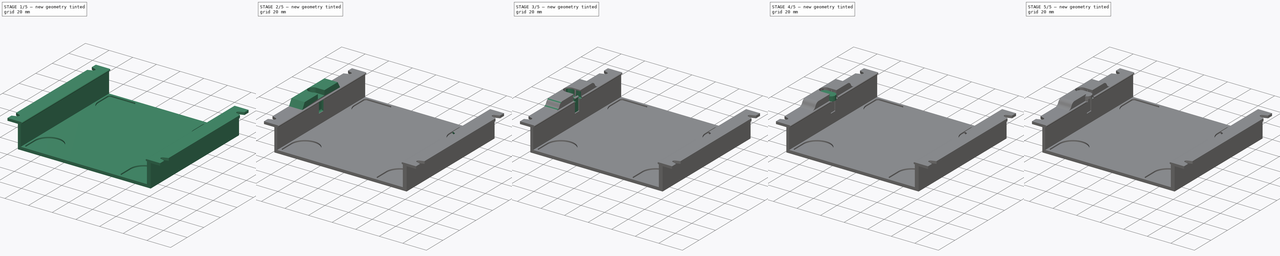
[diagram: build sequence overview — one tinted view per stage of 5, left to right]
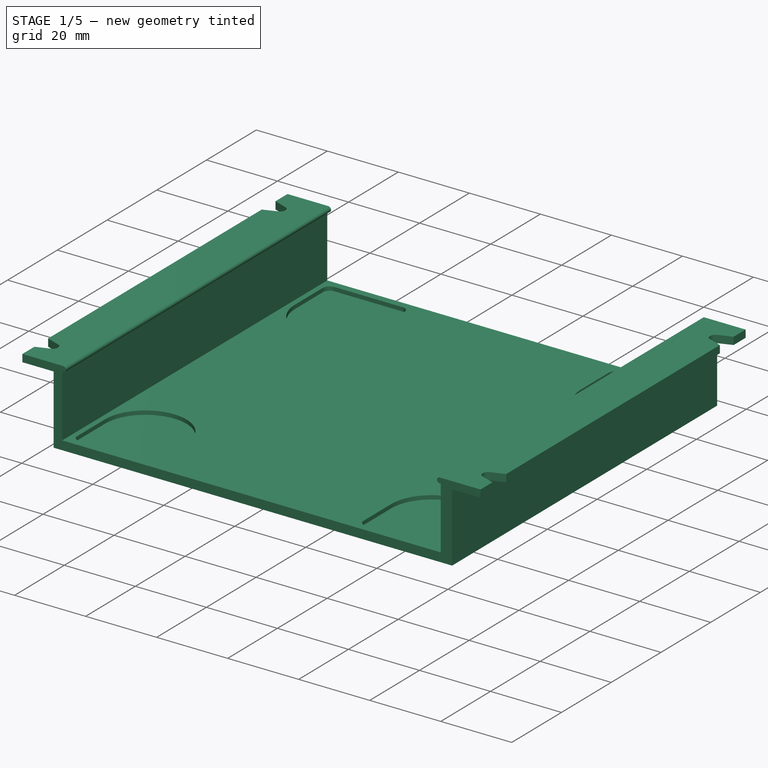
[diagram: stage 1 of 5 — iso view after this stage's code; geometry added in this stage tinted green]
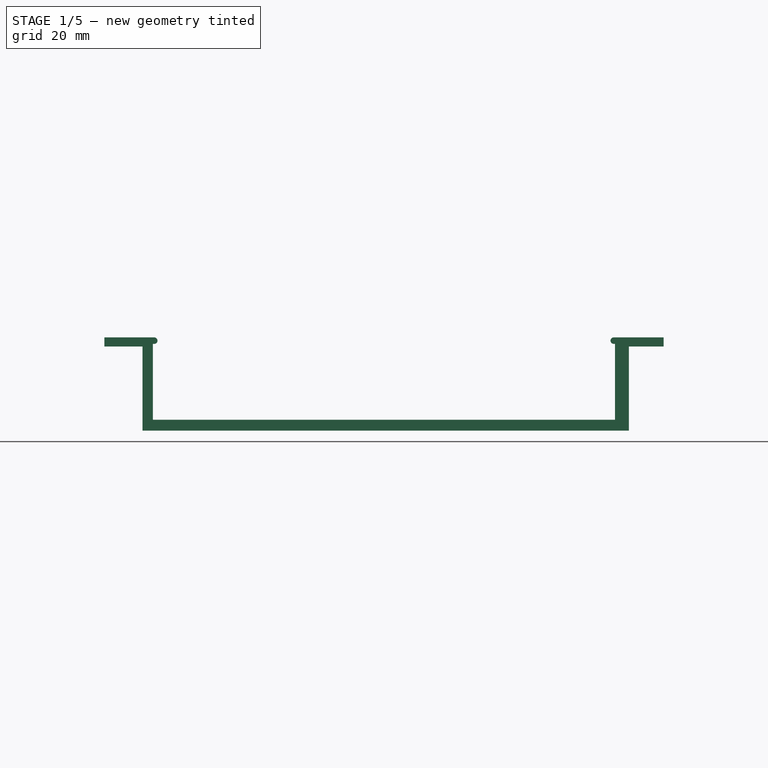
[diagram: stage 1 of 5 — front view after this stage's code; geometry added in this stage tinted green]
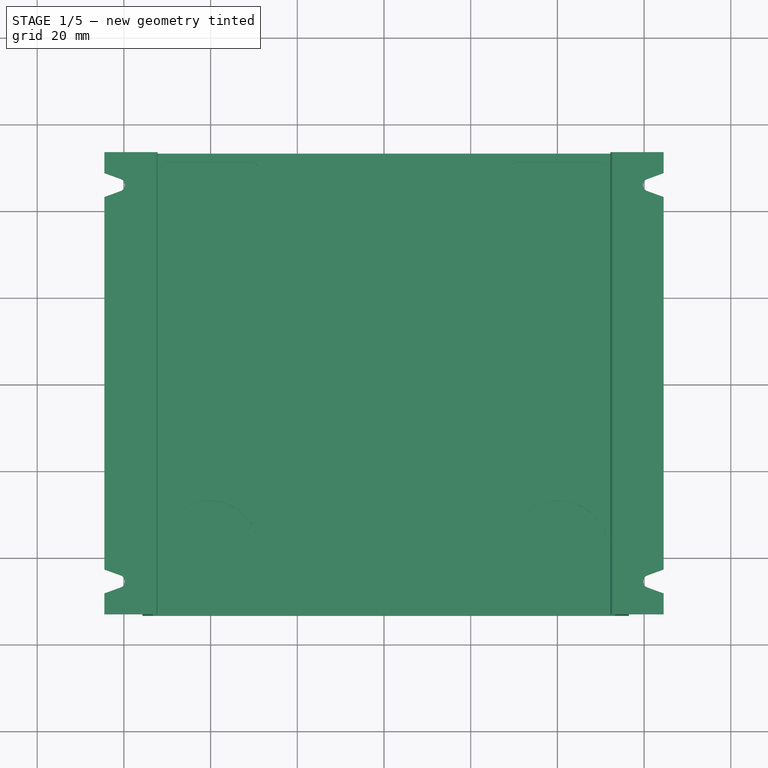
[diagram: stage 1 of 5 — top view after this stage's code; geometry added in this stage tinted green]
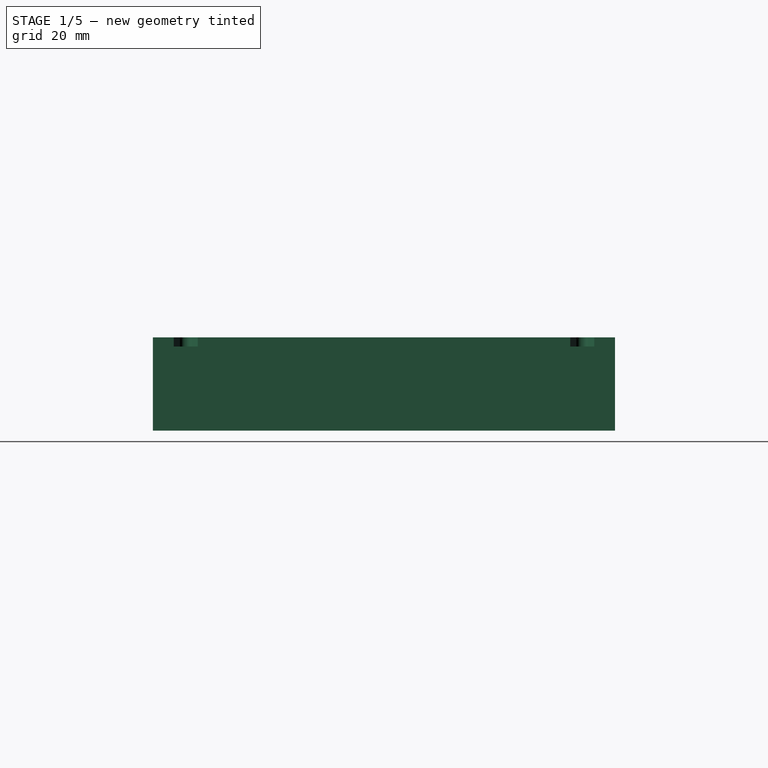
[diagram: stage 1 of 5 — right view after this stage's code; geometry added in this stage tinted green]
FCSTD DOCUMENT  (FreeCAD 0.21R33668 +26 (Git))
Label: eurorack_adapter_v2
License: All rights reserved
LicenseURL: https://en.wikipedia.org/wiki/All_rights_reserved
objects: Sketcher::SketchObject×23, PartDesign::Pocket×12, PartDesign::Pad×10, PartDesign::Plane×5, PartDesign::Mirrored×4, PartDesign::Body×3, PartDesign::Fillet×2
note: 83 computed .brp shape members not serialized (recipe doc carries the construction recipe); baked Part::Feature solids carry a one-line shape summary decoded from their .brp

FEATURE [Sketcher::SketchObject] Sketch001
  FullyConstrained = true
  MapMode = 5
  Placement = pos=(0,0,0) rot=(1,0,0;1.5708rad)
  Support = -> [XZ_Plane001]
  sketch-geometry (8):
    g0: LineSegment StartX=64.5 StartY=0 StartZ=0 EndX=55.7 EndY=0 EndZ=0
    g1: LineSegment StartX=55.7 StartY=0 StartZ=0 EndX=55.7 EndY=-19.4 EndZ=0
    g2: LineSegment StartX=64.5 StartY=0 StartZ=0 EndX=64.5 EndY=2.1 EndZ=0
    g3: LineSegment StartX=64.5 StartY=2.1 StartZ=0 EndX=53.3 EndY=2.1 EndZ=0
    g4: LineSegment StartX=53.3 StartY=2.1 StartZ=0 EndX=53.3 EndY=-16.9 EndZ=0
    g5: LineSegment StartX=53.3 StartY=-16.9 StartZ=0 EndX=0 EndY=-16.9 EndZ=0
    g6: LineSegment StartX=55.7 StartY=-19.4 StartZ=0 EndX=0 EndY=-19.4 EndZ=0
    g7: LineSegment StartX=0 StartY=-16.9 StartZ=0 EndX=0 EndY=-19.4 EndZ=0
  constraints (29):
    c: Vertical(g1)
    c: Coincident(g3,g2)
    c: Horizontal(g3)
    c: Coincident(g4,g3)
    c: Vertical(g4)
    c: DistanceY(g0,g3) = 2.1
    c: DistanceX(g3,g0) = 2.4
    c: DistanceY(g4,g3) = 19
    c: Coincident(g5,g4)
    c: Horizontal(g5)
    c: Coincident(g6,g1)
    c: Horizontal(g6)
    c: DistanceY(g1,g4) = 2.5
    c: DistanceX(g5,g5) = 53.3
    c: Coincident(g7,g5)
    c: Coincident(g7,g6)
    c: Vertical(g7)
    c: DistanceX(g5,g2) = 64.5
    c: Horizontal(g0)
    c: Coincident(g0,g1)
    c: DistanceX(g0,g0) = 8.8
    c: PointOnObject(g5,g-2)
    c: Coincident(g2,g0)
    c: Vertical(g2)
    c: PointOnObject(g0,g-1)
    c: DistanceX(g6,g1) = 55.7
    c: DistanceY(g1,g1) = 19.4
    c: DistanceY(g1,g2) = 21.5
    c: DistanceY(g5,g-1) = 16.9
FEATURE [PartDesign::Pad] Pad001  label="Main"
  Direction = (0,-1,-2e-16)
  Length = 106.6
  Length2 = 10
  Midplane = true
  Placement = pos=(0,0,0) rot=(1,0,0;1.5708rad)
  Profile = -> Sketch001
  ReferenceAxis = -> Sketch001 [N_Axis]
  Type = 0
FEATURE [Sketcher::SketchObject] Sketch002
  ExternalGeometry = -> [Pad001]
  FullyConstrained = true
  MapMode = 5
  Placement = pos=(0,0,0) rot=(1,0,0;1.5708rad)
  Support = -> [XZ_Plane001]
  sketch-geometry (4):
    g0: ArcOfCircle CenterX=53 CenterY=1.35 CenterZ=0 NormalX=0 NormalY=0 NormalZ=1 AngleXU=0 Radius=0.75 StartAngle=1.5708 EndAngle=4.71239
    g1: LineSegment StartX=53.3 StartY=2.1 StartZ=0 EndX=53 EndY=2.1 EndZ=0
    g2: LineSegment StartX=53.3 StartY=0.6 StartZ=0 EndX=53 EndY=0.6 EndZ=0
    g3: LineSegment StartX=53.3 StartY=2.1 StartZ=0 EndX=53.3 EndY=0.6 EndZ=0
  constraints (10):
    c: Coincident(g1,g-4)
    c: PointOnObject(g2,g-3)
    c: Horizontal(g2)
    c: Horizontal(g1)
    c: Diameter(g0) = 1.5
    c: Coincident(g3,g1)
    c: Coincident(g3,g2)
    c: Tangent(g0,g2) = 1.5708
    c: Tangent(g0,g1) = -1.5708
    c: DistanceX(g1,g1) = 0.3
FEATURE [PartDesign::Pad] Pad002  label="Z-holder"
  BaseFeature = -> Pad001
  Direction = (0,-1,-2e-16)
  Length = 106.6
  Length2 = 10
  Midplane = true
  Placement = pos=(0,0,0) rot=(1,0,0;1.5708rad)
  Profile = -> Sketch002
  ReferenceAxis = -> Sketch002 [N_Axis]
  Type = 0
FEATURE [Sketcher::SketchObject] Sketch003
  ExternalGeometry = -> [Pad002]
  FullyConstrained = true
  MapMode = 5
  Support = -> [XY_Plane001]
  sketch-geometry (12):
    g0: ArcOfCircle CenterX=40.3 CenterY=38.3 CenterZ=0 NormalX=0 NormalY=0 NormalZ=1 AngleXU=0 Radius=11.5 StartAngle=3.14159 EndAngle=6.28319
    g1: LineSegment StartX=28.8 StartY=38.3 StartZ=0 EndX=28.8 EndY=49.3 EndZ=0
    g2: LineSegment StartX=51.8 StartY=38.3 StartZ=0 EndX=51.8 EndY=49.3 EndZ=0
    g3: LineSegment StartX=30.8 StartY=51.3 StartZ=0 EndX=49.8 EndY=51.3 EndZ=0
    g4: ArcOfCircle CenterX=40.3 CenterY=-38.3 CenterZ=0 NormalX=0 NormalY=0 NormalZ=1 AngleXU=0 Radius=11.5 StartAngle=0 EndAngle=3.14159
    g5: LineSegment StartX=28.8 StartY=-38.3 StartZ=0 EndX=28.8 EndY=-49.3 EndZ=0
    g6: LineSegment StartX=51.8 StartY=-38.3 StartZ=0 EndX=51.8 EndY=-49.3 EndZ=0
    g7: LineSegment StartX=30.8 StartY=-51.3 StartZ=0 EndX=49.8 EndY=-51.3 EndZ=0
    g8: ArcOfCircle CenterX=30.8 CenterY=-49.3 CenterZ=0 NormalX=0 NormalY=0 NormalZ=1 AngleXU=0 Radius=2 StartAngle=3.14159 EndAngle=4.71239
    g9: ArcOfCircle CenterX=49.8 CenterY=-49.3 CenterZ=0 NormalX=0 NormalY=0 NormalZ=1 AngleXU=0 Radius=2 StartAngle=4.71239 EndAngle=6.28319
    g10: ArcOfCircle CenterX=30.8 CenterY=49.3 CenterZ=0 NormalX=0 NormalY=0 NormalZ=1 AngleXU=0 Radius=2 StartAngle=1.5708 EndAngle=3.14159
    g11: ArcOfCircle CenterX=49.8 CenterY=49.3 CenterZ=0 NormalX=0 NormalY=0 NormalZ=1 AngleXU=0 Radius=2 StartAngle=-9e-16 EndAngle=1.5708
  constraints (30):
    c: Diameter(g0) = 23
    c: Vertical(g2)
    c: Tangent(g0,g2) = -1.5708
    c: Tangent(g0,g1) = 1.5708
    c: Diameter(g4) = 23
    c: Vertical(g6)
    c: Vertical(g5)
    c: Tangent(g4,g6) = 1.5708
    c: Tangent(g4,g5) = -1.5708
    c: Horizontal(g7)
    c: Horizontal(g3)
    c: Equal(g1,g5)
    c: Vertical(g1)
    c: Vertical(g0,g4)
    c: Tangent(g5,g8) = -1.5708
    c: Tangent(g7,g8) = -1.5708
    c: Tangent(g6,g9) = 1.5708
    c: Tangent(g7,g9) = -1.5708
    c: Tangent(g3,g10) = 1.5708
    c: Tangent(g1,g10) = 1.5708
    c: Tangent(g2,g11) = -1.5708
    c: Tangent(g3,g11) = 1.5708
    c: DistanceY(g7,g4) = 13
    c: DistanceY(g-4,g7) = 2
    c: Radius(g8) = 2
    c: Equal(g8,g9)
    c: Equal(g9,g11)
    c: Equal(g11,g10)
    c: DistanceX(g6,g-4) = 1.5
    c: DistanceY(g3,g-3) = 2
FEATURE [PartDesign::Pocket] Pocket  label="Foot_pocket"
  AlongSketchNormal = false
  BaseFeature = -> Pad002
  Direction = (0,0,-1)
  Length = 18
  Length2 = 5
  Placement = pos=(0,0,0) rot=(1,0,0;1.5708rad)
  Profile = -> Sketch003
  ReferenceAxis = -> Sketch003 [N_Axis]
  Type = 0
FEATURE [Sketcher::SketchObject] Sketch004
  FullyConstrained = true
  MapMode = 5
  Support = -> [XY_Plane001]
  sketch-geometry (16):
    g0: LineSegment StartX=0 StartY=-53.3 StartZ=0 EndX=64.5 EndY=-53.3 EndZ=0
    g1: LineSegment StartX=64.5 StartY=-53.3 StartZ=0 EndX=64.5 EndY=0 EndZ=0
    g2: ArcOfCircle CenterX=61.2 CenterY=-45.8 CenterZ=0 NormalX=0 NormalY=0 NormalZ=1 AngleXU=0 Radius=1.4 StartAngle=3.14159 EndAngle=4.36332
    g3: ArcOfCircle CenterX=61.2 CenterY=-45.65 CenterZ=0 NormalX=0 NormalY=0 NormalZ=1 AngleXU=0 Radius=1.4 StartAngle=1.91986 EndAngle=3.14159
    g4: LineSegment StartX=64.5 StartY=0 StartZ=0 EndX=64.5 EndY=53.3 EndZ=0
    g5: LineSegment StartX=64.5 StartY=53.3 StartZ=0 EndX=0 EndY=53.3 EndZ=0
    g6: ArcOfCircle CenterX=61.2 CenterY=45.8 CenterZ=0 NormalX=0 NormalY=0 NormalZ=1 AngleXU=0 Radius=1.4 StartAngle=1.91986 EndAngle=3.14159
    g7: ArcOfCircle CenterX=61.2 CenterY=45.65 CenterZ=0 NormalX=0 NormalY=0 NormalZ=1 AngleXU=0 Radius=1.4 StartAngle=3.14159 EndAngle=4.36332
    g8: LineSegment StartX=59.8 StartY=-45.65 StartZ=0 EndX=59.8 EndY=-45.8 EndZ=0
    g9: LineSegment StartX=59.8 StartY=45.8 StartZ=0 EndX=59.8 EndY=45.65 EndZ=0
    g10: LineSegment StartX=60.7212 StartY=-44.3344 StartZ=0 EndX=64.5 EndY=-42.959 EndZ=0
    g11: LineSegment StartX=60.7212 StartY=-47.1156 StartZ=0 EndX=64.5 EndY=-48.491 EndZ=0
    g12: LineSegment StartX=60.7212 StartY=47.1156 StartZ=0 EndX=64.5 EndY=48.491 EndZ=0
    g13: LineSegment StartX=60.7212 StartY=44.3344 StartZ=0 EndX=64.5 EndY=42.959 EndZ=0
    g14: LineSegment StartX=64.5 StartY=-42.959 StartZ=0 EndX=64.5 EndY=-48.491 EndZ=0
    g15: LineSegment StartX=64.5 StartY=48.491 StartZ=0 EndX=64.5 EndY=42.959 EndZ=0
  constraints (45):
    c: PointOnObject(g0,g-2)
    c: Horizontal(g0)
    c: DistanceY(g0,g-1) = 53.3
    c: DistanceX(g0,g0) = 64.5
    c: Coincident(g1,g0)
    c: PointOnObject(g1,g-1)
    c: Vertical(g1)
    c: DistanceX(g2,g0) = 3.3
    c: DistanceY(g0,g2) = 7.5
    c: Vertical(g3,g2)
    c: DistanceY(g3,g1) = 45.65
    c: Diameter(g2) = 2.8
    c: Equal(g3,g2)
    c: Coincident(g4,g1)
    c: Vertical(g4)
    c: Coincident(g5,g4)
    c: PointOnObject(g5,g-2)
    c: Horizontal(g5)
    c: Equal(g4,g1)
    c: DistanceX(g6,g4) = 3.3
    c: DistanceY(g6,g4) = 7.5
    c: Vertical(g7,g6)
    c: DistanceY(g4,g7) = 45.65
    c: Equal(g7,g3)
    c: Equal(g6,g3)
    c: Tangent(g3,g8) = -1.5708
    c: Tangent(g2,g8) = -1.5708
    c: Tangent(g7,g9) = -1.5708
    c: Tangent(g6,g9) = -1.5708
    c: PointOnObject(g10,g1)
    c: PointOnObject(g11,g1)
    c: PointOnObject(g12,g4)
    c: PointOnObject(g13,g4)
    c: Coincident(g14,g10)
    c: Coincident(g14,g11)
    c: Equal(g10,g11)
    c: Angle(g11,g10) = 0.698132
    c: Equal(g12,g13)
    c: Coincident(g15,g12)
    c: Coincident(g15,g13)
    c: Angle(g13,g12) = 0.698132
    c: Tangent(g2,g11) = -1.5708
    c: Tangent(g3,g10) = 1.5708
    c: Tangent(g7,g13) = -1.5708
    c: Tangent(g6,g12) = 1.5708
FEATURE [PartDesign::Pocket] Pocket001  label="Hole"
  BaseFeature = -> Pocket
  Direction = (0,0,-1)
  Length = 5
  Length2 = 5
  Placement = pos=(0,0,0) rot=(1,0,0;1.5708rad)
  Profile = -> Sketch004
  ReferenceAxis = -> Sketch004 [N_Axis]
  Reversed = true
  Type = 0
FEATURE [PartDesign::Mirrored] Mirrored
  BaseFeature = -> Pocket001
  MirrorPlane = -> YZ_Plane001
  Originals = -> [Pad001,Pad002,Pocket,Pocket001]
  Placement = pos=(0,0,0) rot=(1,0,0;1.5708rad)
FEATURE [PartDesign::Plane] DatumPlane
  AttachmentOffset = pos=(0,0,55.8) rot=(0,0,1;0rad)
  Length = 121.201
  MapMode = 5
  Placement = pos=(55.8,-1.24e-14,1.24e-14) rot=(0.57735,0.57735,0.57735;2.0944rad)
  ResizeMode = 0
  Support = -> [YZ_Plane001]
  Width = 64.6014
FEATURE [Sketcher::SketchObject] Sketch006
  FullyConstrained = true
  MapMode = 5
  Placement = pos=(-64.5,1.4e-14,-1.4e-14) rot=(0.57735,-0.57735,-0.57735;2.0944rad)
  sketch-geometry (6):
    g0: LineSegment StartX=-53.3 StartY=2.1 StartZ=0 EndX=53.3 EndY=2.1 EndZ=0
    g1: LineSegment StartX=0 StartY=0 StartZ=0 EndX=0 EndY=2.1 EndZ=0
    g2: LineSegment StartX=-22.8868 StartY=2.1 StartZ=0 EndX=-20 EndY=7.1 EndZ=0
    g3: LineSegment StartX=-20 StartY=7.1 StartZ=0 EndX=20 EndY=7.1 EndZ=0
    g4: LineSegment StartX=20 StartY=7.1 StartZ=0 EndX=22.8868 EndY=2.1 EndZ=0
    g5: LineSegment StartX=-22.8868 StartY=2.1 StartZ=0 EndX=22.8868 EndY=2.1 EndZ=0
  constraints (17):
    c: Horizontal(g0)
    c: DistanceY(g-1,g0) = 2.1
    c: DistanceX(g0,g0) = 106.6
    c: Coincident(g1,g-1)
    c: Vertical(g1)
    c: Symmetric(g0,g0,g1)
    c: PointOnObject(g2,g0)
    c: Coincident(g3,g2)
    c: Horizontal(g3)
    c: Equal(g4,g2)
    c: Coincident(g4,g3)
    c: Symmetric(g4,g2,g1)
    c: DistanceX(g3,g3) = 40
    c: Angle(g3,g4) = 2.0944
    c: Coincident(g5,g2)
    c: Coincident(g5,g4)
    c: DistanceY(g1,g3) = 5
FEATURE [PartDesign::Plane] DatumPlane002
  AttachmentOffset = pos=(0,0,2.5) rot=(0,0,1;0rad)
  Length = 145.062
  MapMode = 5
  Placement = pos=(0,2.5,6e-16) rot=(0,0.707107,0.707107;3.14159rad)
  ResizeMode = 0
  Support = -> [XZ_Plane001]
  Width = 66.0624
FEATURE [Sketcher::SketchObject] Sketch
  FullyConstrained = true
  MapMode = 5
  Placement = pos=(0,0,0) rot=(1,0,0;1.5708rad)
  Support = -> [XZ_Plane001]
  sketch-geometry (4):
    g0: LineSegment StartX=55.7 StartY=0 StartZ=0 EndX=56.5 EndY=0 EndZ=0
    g1: LineSegment StartX=56.5 StartY=0 StartZ=0 EndX=56.5 EndY=-19.4 EndZ=0
    g2: LineSegment StartX=56.5 StartY=-19.4 StartZ=0 EndX=55.7 EndY=-19.4 EndZ=0
    g3: LineSegment StartX=55.7 StartY=-19.4 StartZ=0 EndX=55.7 EndY=0 EndZ=0
  constraints (12):
    c: Coincident(g0,g1)
    c: Coincident(g1,g2)
    c: Coincident(g2,g3)
    c: Coincident(g3,g0)
    c: Horizontal(g0)
    c: Horizontal(g2)
    c: Vertical(g1)
    c: Vertical(g3)
    c: PointOnObject(g0,g-1)
    c: DistanceX(g-1,g2) = 55.7
    c: DistanceY(g2,g-1) = 19.4
    c: DistanceX(g2,g2) = 0.8
FEATURE [PartDesign::Pad] Pad  label="Wall thickness increase"
  BaseFeature = -> Mirrored
  Direction = (0,-1,-2e-16)
  Length = 106.6
  Length2 = 10
  Midplane = true
  Placement = pos=(0,0,0) rot=(1,0,0;1.5708rad)
  Profile = -> Sketch
  ReferenceAxis = -> Sketch [N_Axis]
  Type = 0
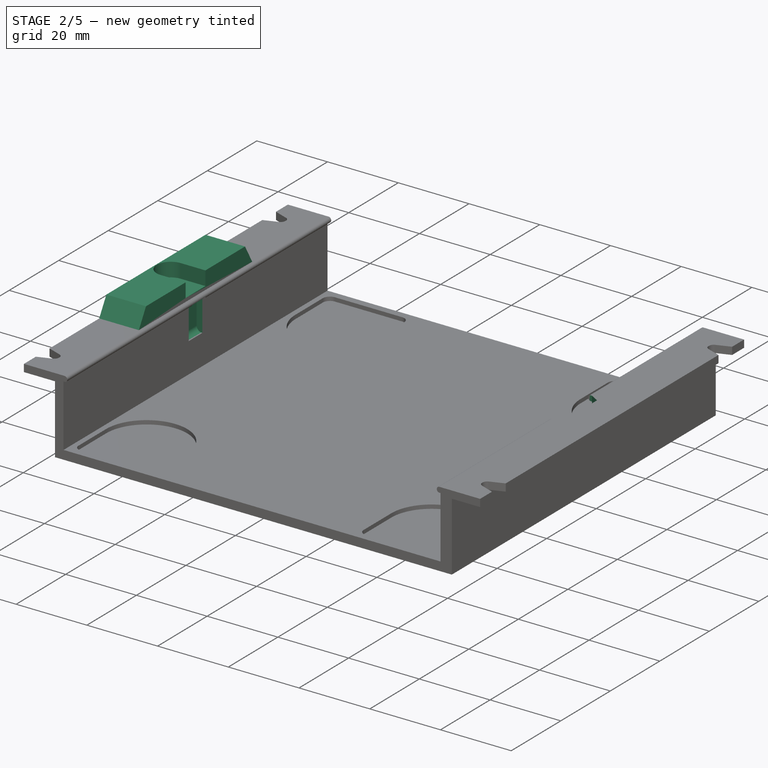
[diagram: stage 2 of 5 — iso view after this stage's code; geometry added in this stage tinted green]
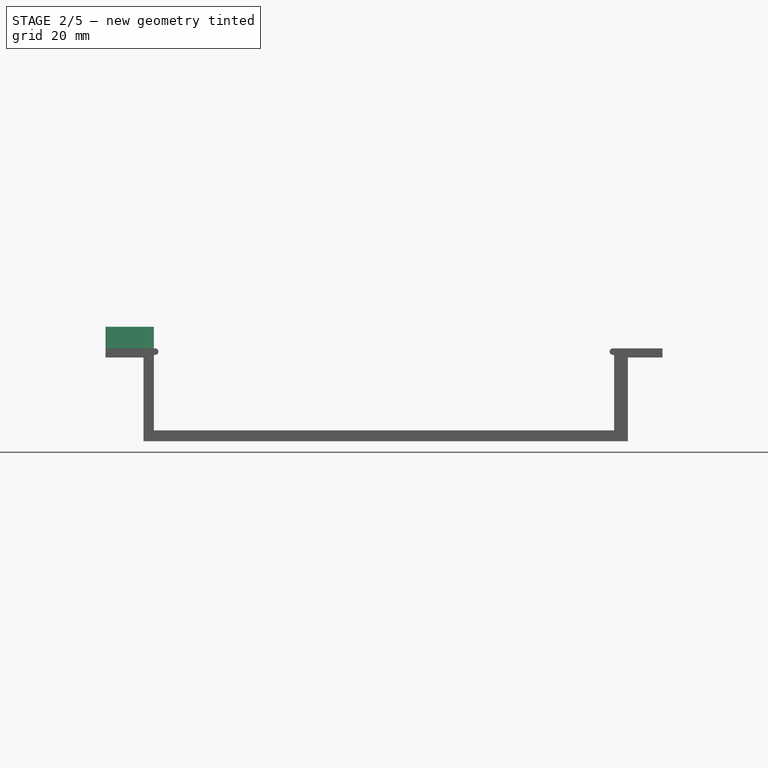
[diagram: stage 2 of 5 — front view after this stage's code; geometry added in this stage tinted green]
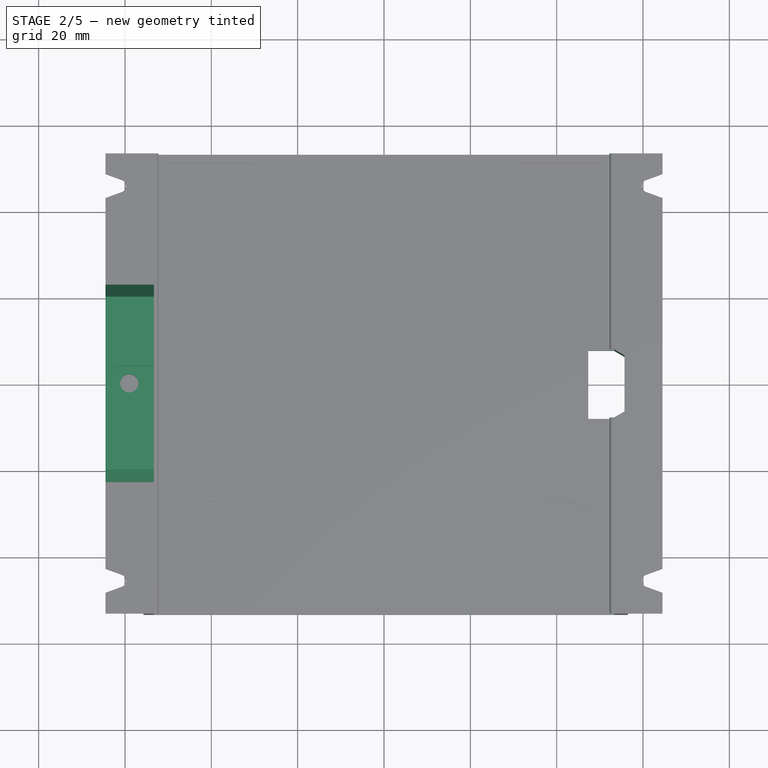
[diagram: stage 2 of 5 — top view after this stage's code; geometry added in this stage tinted green]
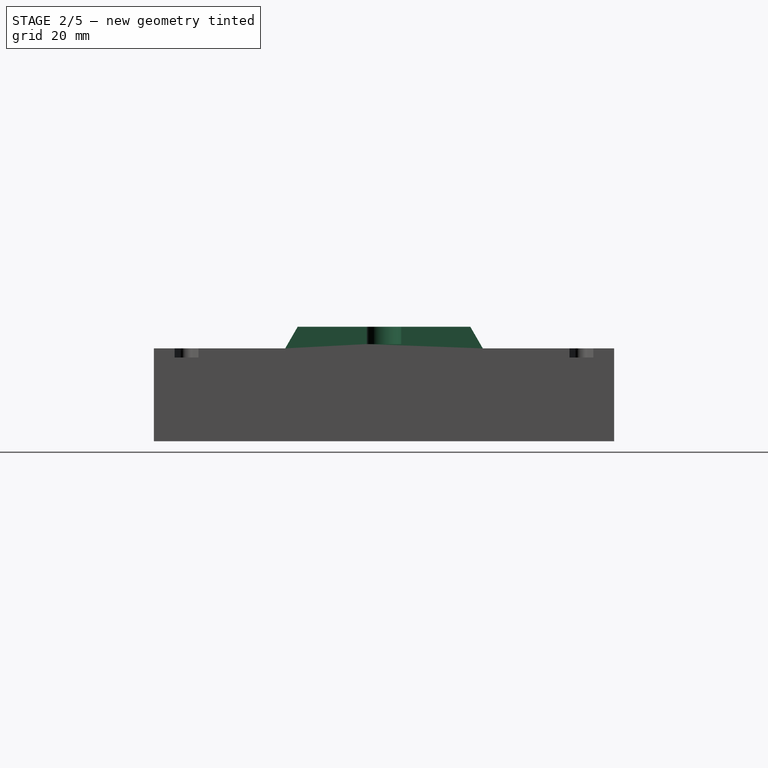
[diagram: stage 2 of 5 — right view after this stage's code; geometry added in this stage tinted green]
FEATURE [Sketcher::SketchObject] Sketch011
  FullyConstrained = true
  MapMode = 5
  Support = -> [XY_Plane001]
  sketch-geometry (7):
    g0: LineSegment StartX=47.3 StartY=7.88564 StartZ=0 EndX=47.3 EndY=-7.88564 EndZ=0
    g1: GeomPoint X=47.3 Y=0 Z=0
    g2: LineSegment StartX=47.3 StartY=7.88564 StartZ=0 EndX=53.3 EndY=7.88564 EndZ=0
    g3: LineSegment StartX=53.3 StartY=7.88564 StartZ=0 EndX=55.7 EndY=6.5 EndZ=0
    g4: LineSegment StartX=55.7 StartY=6.5 StartZ=0 EndX=55.7 EndY=-6.5 EndZ=0
    g5: LineSegment StartX=55.7 StartY=-6.5 StartZ=0 EndX=53.3 EndY=-7.88564 EndZ=0
    g6: LineSegment StartX=53.3 StartY=-7.88564 StartZ=0 EndX=47.3 EndY=-7.88564 EndZ=0
  constraints (19):
    c: Vertical(g0)
    c: Symmetric(g0,g0,g1)
    c: PointOnObject(g1,g-1)
    c: Coincident(g2,g0)
    c: Horizontal(g2)
    c: Coincident(g3,g2)
    c: Coincident(g4,g3)
    c: Vertical(g4)
    c: Coincident(g5,g4)
    c: Coincident(g6,g5)
    c: Coincident(g6,g0)
    c: Horizontal(g6)
    c: Angle(g0,g3) = 1.0472
    c: Angle(g5,g0) = 1.0472
    c: DistanceY(g4,g4) = 13
    c: DistanceX(g2,g2) = 6
    c: Equal(g6,g2)
    c: DistanceX(g-1,g3) = 55.7
    c: DistanceX(g-1,g2) = 53.3
FEATURE [PartDesign::Pocket] Pocket005  label="PCB pocket"
  BaseFeature = -> Pad
  Direction = (0,0,-1)
  Length = 5
  Length2 = 5
  Midplane = true
  Placement = pos=(0,0,0) rot=(1,0,0;1.5708rad)
  Profile = -> Sketch011
  ReferenceAxis = -> Sketch011 [N_Axis]
  Type = 1
FEATURE [PartDesign::Pad] Pad003  label="Button house"
  BaseFeature = -> Pocket005
  Direction = (-1,0,0)
  Length = 10
  Length2 = 10
  Placement = pos=(0,0,0) rot=(1,0,0;1.5708rad)
  Profile = -> Sketch006
  ReferenceAxis = -> Sketch006 [N_Axis]
  Reversed = true
  Type = 3
  UpToFace = -> Mirrored [Face7]
FEATURE [PartDesign::Plane] DatumPlane007
  AttachmentOffset = pos=(0,0,1.1) rot=(0,0,1;0rad)
  Length = 152.453
  MapMode = 5
  Placement = pos=(0,0,1.1) rot=(0,0,1;0rad)
  ResizeMode = 0
  Support = -> [XY_Plane001]
  Width = 130.053
FEATURE [Sketcher::SketchObject] Sketch020
  FullyConstrained = true
  MapMode = 5
  Placement = pos=(0,0,1.1) rot=(0,0,1;0rad)
  Support = -> [DatumPlane007]
  sketch-geometry (6):
    g0: ArcOfCircle CenterX=-60.5 CenterY=0 CenterZ=0 NormalX=0 NormalY=0 NormalZ=1 AngleXU=0 Radius=5.2 StartAngle=1.5708 EndAngle=2.30916
    g1: ArcOfCircle CenterX=-55 CenterY=0 CenterZ=0 NormalX=0 NormalY=0 NormalZ=1 AngleXU=0 Radius=5.2 StartAngle=4.71239 EndAngle=7.85398
    g2: LineSegment StartX=-60.5 StartY=5.2 StartZ=0 EndX=-55 EndY=5.2 EndZ=0
    g3: LineSegment StartX=-60.5 StartY=-5.2 StartZ=0 EndX=-55 EndY=-5.2 EndZ=0
    g4: LineSegment StartX=-64 StartY=3.84578 StartZ=0 EndX=-64 EndY=-3.84578 EndZ=0
    g5: ArcOfCircle CenterX=-60.5 CenterY=0 CenterZ=0 NormalX=0 NormalY=0 NormalZ=1 AngleXU=0 Radius=5.2 StartAngle=3.97403 EndAngle=4.71239
  constraints (17):
    c: PointOnObject(g0,g-1)
    c: PointOnObject(g1,g-1)
    c: Horizontal(g3)
    c: Tangent(g1,g2) = 1.5708
    c: Tangent(g1,g3) = -1.5708
    c: Coincident(g5,g3) = -1.5708
    c: Tangent(g0,g2) = 1.5708
    c: DistanceX(g0,g-1) = 60.5
    c: Radius(g0) = 5.2
    c: DistanceX(g2,g2) = 5.5
    c: Vertical(g4)
    c: DistanceX(g4,g-1) = 64
    c: Equal(g0,g5)
    c: Coincident(g0,g4)
    c: Coincident(g5,g4)
    c: Coincident(g0,g5)
    c: Horizontal(g2)
FEATURE [PartDesign::Pocket] Pocket010  label="Button cutout"
  BaseFeature = -> Pad003
  Direction = (0,0,-1)
  Length = 4
  Length2 = 5
  Placement = pos=(0,0,0) rot=(1,0,0;1.5708rad)
  Profile = -> Sketch012
  ReferenceAxis = -> Sketch012 [N_Axis]
  Type = 0
FEATURE [Sketcher::SketchObject] Sketch024
  FullyConstrained = true
  MapMode = 5
  Placement = pos=(0,0,0) rot=(1,0,0;1.5708rad)
  Support = -> [XZ_Plane001]
  sketch-geometry (7):
    g0: LineSegment StartX=-55.7 StartY=1.1 StartZ=0 EndX=-53.3 EndY=1.1 EndZ=0
    g1: LineSegment StartX=-53.3 StartY=-16.9 StartZ=0 EndX=0 EndY=-16.9 EndZ=0
    g2: LineSegment StartX=-54.9 StartY=1.1 StartZ=0 EndX=-54.9 EndY=-6.9 EndZ=0
    g3: LineSegment StartX=-53.5343 StartY=-8.38098 StartZ=0 EndX=-53.3 EndY=-8.4 EndZ=0
    g4: ArcOfCircle CenterX=-53.4142 CenterY=-6.9 CenterZ=0 NormalX=0 NormalY=0 NormalZ=1 AngleXU=0 Radius=1.48585 StartAngle=3.14159 EndAngle=4.63141
    g5: LineSegment StartX=-54.9 StartY=1.1 StartZ=0 EndX=-51.9 EndY=1.1 EndZ=0
    g6: LineSegment StartX=-51.9 StartY=1.1 StartZ=0 EndX=-53.3 EndY=-8.4 EndZ=0
  constraints (22):
    c: Horizontal(g0)
    c: DistanceY(g-1,g0) = 1.1
    c: PointOnObject(g1,g-2)
    c: Horizontal(g1)
    c: DistanceY(g1,g-1) = 16.9
    c: DistanceX(g1,g1) = 53.3
    c: Vertical(g0,g1)
    c: PointOnObject(g2,g0)
    c: Vertical(g2)
    c: Tangent(g3,g4) = -1.5708
    c: Tangent(g2,g4) = -1.5708
    c: DistanceY(g1,g3) = 8.5
    c: DistanceX(g0,g0) = 2.4
    c: DistanceX(g0,g2) = 0.8
    c: DistanceY(g2,g2) = 8
    c: Vertical(g3,g1)
    c: Coincident(g5,g2)
    c: Horizontal(g5)
    c: Coincident(g6,g5)
    c: Coincident(g6,g3)
    c: DistanceX(g5,g5) = 3
    c: Angle(g3,g2) = 1.65178
FEATURE [PartDesign::Pocket] Pocket011  label="Pusher cutout"
  BaseFeature = -> Pocket010
  Direction = (0,1,2e-16)
  Length = 5.5
  Length2 = 5
  Midplane = true
  Placement = pos=(0,0,0) rot=(1,0,0;1.5708rad)
  Profile = -> Sketch024
  ReferenceAxis = -> Sketch024 [N_Axis]
  Type = 0
FEATURE [PartDesign::Pocket] Pocket008  label="Spring cutout"
  BaseFeature = -> Pocket011
  Direction = (0,0,-1)
  Length = 6.8
  Length2 = 5
  Placement = pos=(0,0,0) rot=(1,0,0;1.5708rad)
  Profile = -> Sketch015
  ReferenceAxis = -> Sketch015 [N_Axis]
  Type = 0
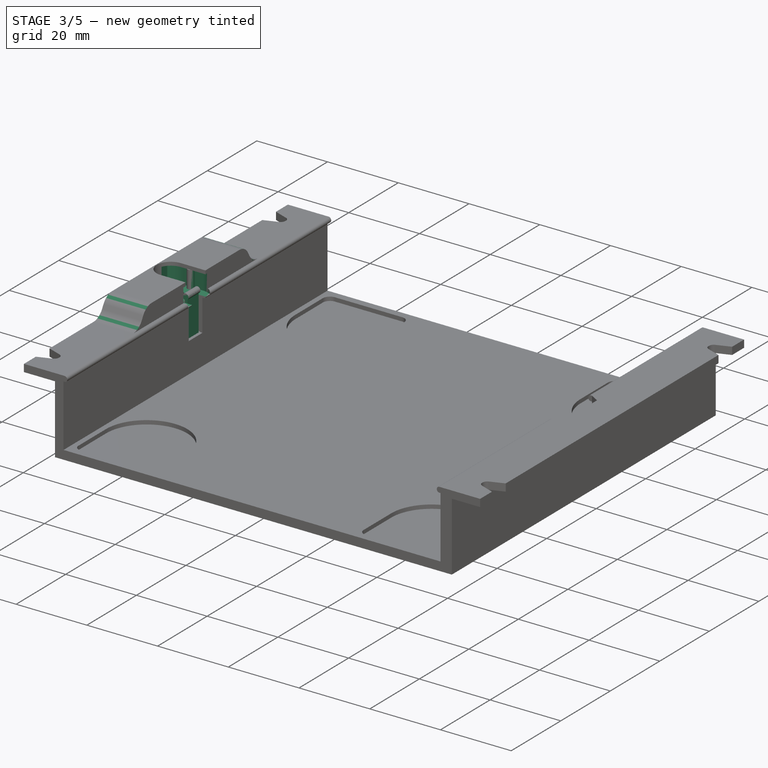
[diagram: stage 3 of 5 — iso view after this stage's code; geometry added in this stage tinted green]
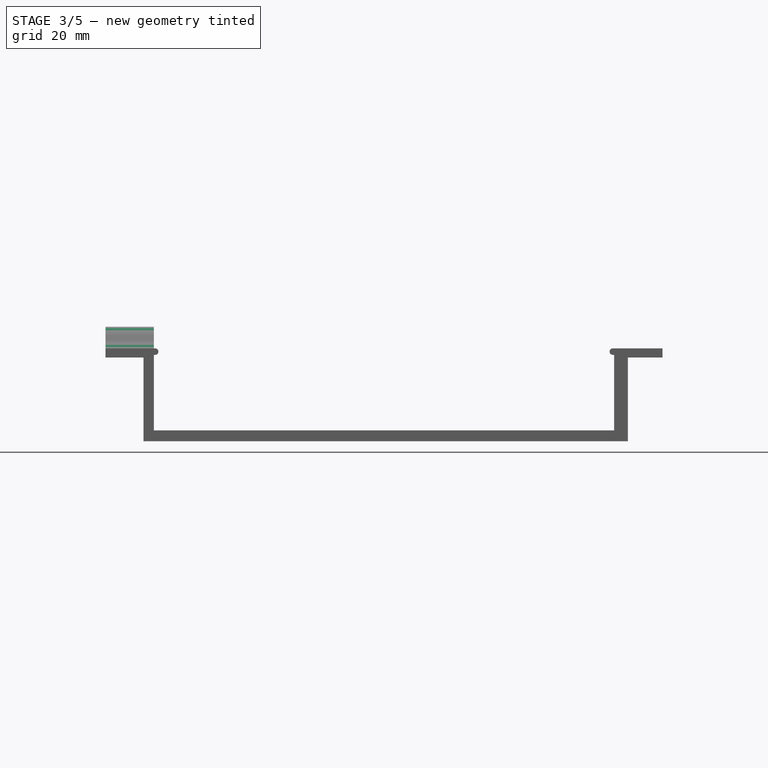
[diagram: stage 3 of 5 — front view after this stage's code; geometry added in this stage tinted green]
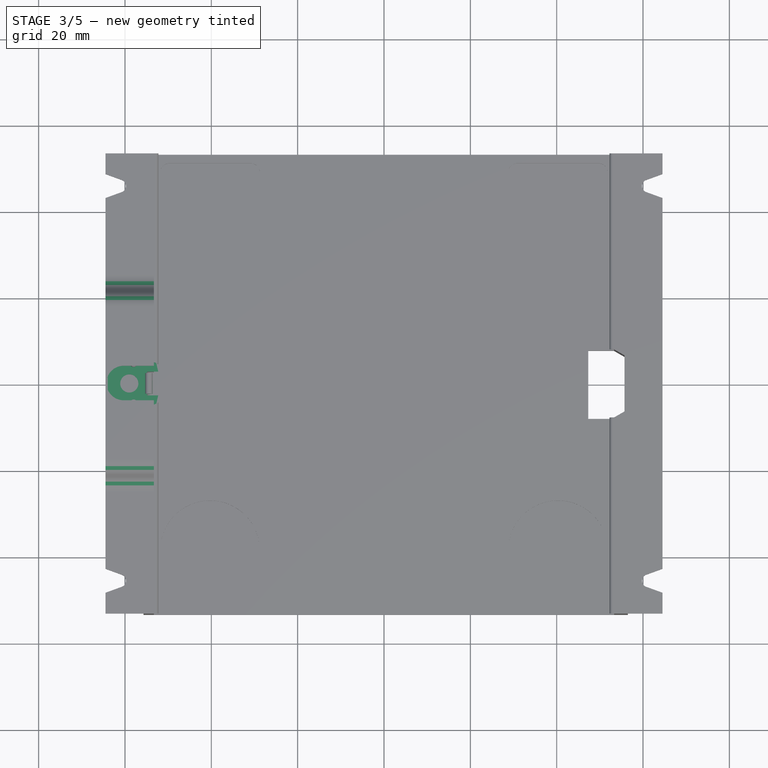
[diagram: stage 3 of 5 — top view after this stage's code; geometry added in this stage tinted green]
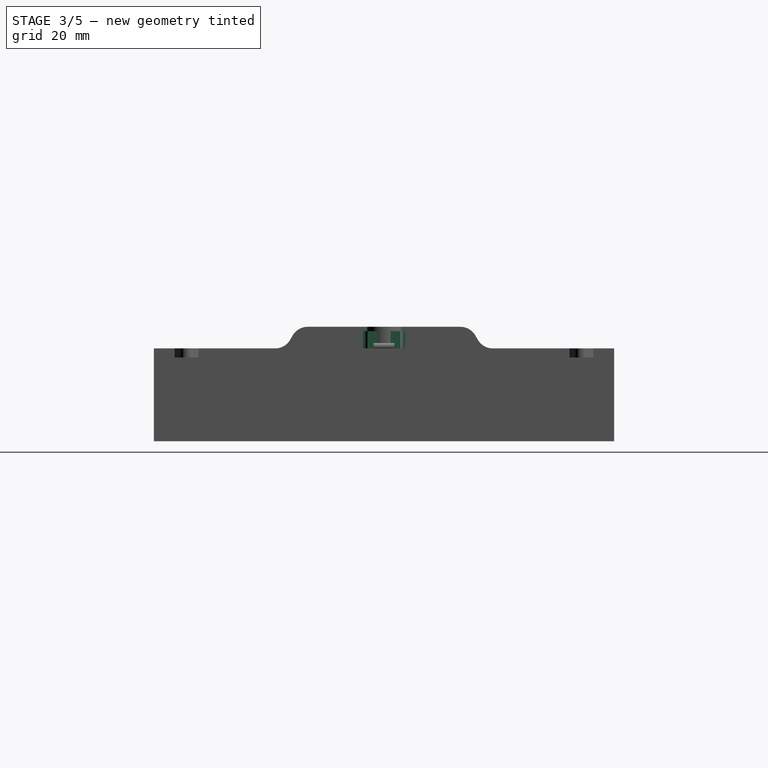
[diagram: stage 3 of 5 — right view after this stage's code; geometry added in this stage tinted green]
FEATURE [PartDesign::Pocket] Pocket009
  BaseFeature = -> Pocket008
  Direction = (0,0,-1)
  Length = 5
  Length2 = 5
  Placement = pos=(0,0,0) rot=(1,0,0;1.5708rad)
  Profile = -> Sketch020
  ReferenceAxis = -> Sketch020 [N_Axis]
  Refine = true
  Reversed = true
  Type = 0
FEATURE [Sketcher::SketchObject] Sketch008
  FullyConstrained = false
  MapMode = 5
  Placement = pos=(0,0,0) rot=(1,0,0;1.5708rad)
  Support = -> [XZ_Plane002]
  sketch-geometry (11):
    g0: LineSegment StartX=-53.3 StartY=-16.9 StartZ=0 EndX=0 EndY=-16.9 EndZ=0
    g1: LineSegment StartX=-53.3 StartY=2.5 StartZ=0 EndX=-55.7 EndY=2.5 EndZ=0
    g2: GeomPoint X=-54.5 Y=-3.65 Z=0
    g3: LineSegment StartX=-54.9 StartY=2.5 StartZ=0 EndX=-54.9 EndY=-9.01436 EndZ=0
    g4: LineSegment StartX=-54.4 StartY=-9.88038 StartZ=0 EndX=-53.5 EndY=-10.4 EndZ=0
    g5: ArcOfCircle CenterX=-53.9 CenterY=-9.01436 CenterZ=0 NormalX=0 NormalY=0 NormalZ=1 AngleXU=0 Radius=1 StartAngle=3.14159 EndAngle=4.18879
    g6: LineSegment StartX=-54.9 StartY=2.5 StartZ=0 EndX=-54 EndY=2.5 EndZ=0
    g7: LineSegment StartX=-54 StartY=2.5 StartZ=0 EndX=-54 EndY=-8.70718 EndZ=0
    g8: LineSegment StartX=-53.65 StartY=-9.3134 StartZ=0 EndX=-53.5 EndY=-9.4 EndZ=0
    g9: LineSegment StartX=-53.5 StartY=-9.4 StartZ=0 EndX=-53.5 EndY=-10.4 EndZ=0
    g10: ArcOfCircle CenterX=-53.3 CenterY=-8.70718 CenterZ=0 NormalX=0 NormalY=0 NormalZ=1 AngleXU=0 Radius=0.7 StartAngle=3.14159 EndAngle=4.18879
  constraints (32):
    c: Horizontal(g0)
    c: Horizontal(g1)
    c: PointOnObject(g0,g-2)
    c: DistanceX(g0,g0) = 53.3
    c: DistanceY(g0,g-1) = 16.9
    c: Vertical(g1,g0)
    c: DistanceX(g1,g1) = 2.4
    c: PointOnObject(g3,g1)
    c: Vertical(g3)
    c: Tangent(g4,g5) = -1.5708
    c: Tangent(g3,g5) = -1.5708
    c: Angle(g4,g3) = 2.0944
    c: DistanceX(g1,g3) = 0.8
    c: Radius(g5) = 1
    c: Coincident(g6,g3)
    c: PointOnObject(g6,g1)
    c: DistanceX(g6,g6) = 0.9
    c: Coincident(g7,g6)
    c: Vertical(g7)
    c: Coincident(g9,g8)
    c: Coincident(g9,g4)
    c: Parallel(g8,g4)
    c: Tangent(g8,g10) = -1.5708
    c: Tangent(g7,g10) = -1.5708
    c: Radius(g10) = 0.7
    c: DistanceY(g9,g9) = 1
    c: DistanceY(g0,g4) = 6.5
    c: DistanceX(g3,g-1) = 54.9
    c: DistanceY(g-1,g1) = 2.5
    c: Vertical(g9)
    c: DistanceX(g3,g4) = 1.4
    c: DistanceX(g6,g-1) = 54
FEATURE [PartDesign::Pad] Pad005
  Direction = (0,-1,-2e-16)
  Length = 4.5
  Length2 = 10
  Midplane = true
  Placement = pos=(0,0,0) rot=(1,0,0;1.5708rad)
  Profile = -> Sketch008
  ReferenceAxis = -> Sketch008 [N_Axis]
  Type = 0
FEATURE [Sketcher::SketchObject] Sketch026
  FullyConstrained = true
  MapMode = 5
  Placement = pos=(0,0,1.1) rot=(0,0,1;0rad)
  Support = -> [DatumPlane005]
  sketch-geometry (5):
    g0: LineSegment StartX=-55.3 StartY=2.5 StartZ=0 EndX=-55.3 EndY=-2.5 EndZ=0
    g1: LineSegment StartX=-55.3 StartY=-2.5 StartZ=0 EndX=-50 EndY=-2.5 EndZ=0
    g2: LineSegment StartX=-50 StartY=-2.5 StartZ=0 EndX=-50 EndY=2.5 EndZ=0
    g3: LineSegment StartX=-50 StartY=2.5 StartZ=0 EndX=-55.3 EndY=2.5 EndZ=0
    g4: GeomPoint X=-52.65 Y=0 Z=0
  constraints (13):
    c: Coincident(g0,g1)
    c: Coincident(g1,g2)
    c: Coincident(g2,g3)
    c: Coincident(g3,g0)
    c: Horizontal(g1)
    c: Horizontal(g3)
    c: Vertical(g0)
    c: Vertical(g2)
    c: Symmetric(g1,g0,g4)
    c: PointOnObject(g4,g-1)
    c: DistanceY(g0,g0) = 5
    c: DistanceX(g1,g1) = 5.3
    c: DistanceX(g2,g-1) = 50
FEATURE [Sketcher::SketchObject] Sketch027
  ExternalGeometry = -> [Pad005]
  FullyConstrained = false
  MapMode = 5
  Placement = pos=(0,0,0) rot=(1,0,0;1.5708rad)
  Support = -> [XZ_Plane002]
  sketch-geometry (3):
    g0: Circle CenterX=-54.45 CenterY=2.5 CenterZ=0 NormalX=0 NormalY=0 NormalZ=1 AngleXU=0 Radius=0.85
    g1: LineSegment StartX=-54.45 StartY=2.95 StartZ=0 EndX=-54.45 EndY=2.05 EndZ=0
    g2: LineSegment StartX=-54.45 StartY=2.95 StartZ=0 EndX=-51.2082 EndY=2.95 EndZ=0
  constraints (8):
    c: Symmetric(g-3,g-3,g0)
    c: Diameter(g0) = 1.7
    c: Vertical(g1)
    c: Symmetric(g1,g1,g0)
    c: DistanceY(g1,g1) = 0.9
    c: Coincident(g2,g1)
    c: Horizontal(g2)
    c: DistanceY(g2) = 2.95
FEATURE [PartDesign::Pad] Pad013
  BaseFeature = -> Pad005
  Direction = (0,-1,-2e-16)
  Length = 4.8
  Length2 = 10
  Midplane = true
  Placement = pos=(0,0,0) rot=(1,0,0;1.5708rad)
  Profile = -> Sketch027
  ReferenceAxis = -> Sketch027 [N_Axis]
  Type = 0
FEATURE [Sketcher::SketchObject] Sketch031
  FullyConstrained = true
  MapMode = 5
  Placement = pos=(0,0,1.1) rot=(0,0,1;0rad)
  Support = -> [DatumPlane007]
  sketch-geometry (4):
    g0: ArcOfCircle CenterX=-58 CenterY=4.7 CenterZ=0 NormalX=0 NormalY=0 NormalZ=1 AngleXU=0 Radius=0.9 StartAngle=3.14159 EndAngle=6.28319
    g1: LineSegment StartX=-58.9 StartY=4.7 StartZ=0 EndX=-58.9 EndY=6.7 EndZ=0
    g2: LineSegment StartX=-58.9 StartY=6.7 StartZ=0 EndX=-57.1 EndY=6.7 EndZ=0
    g3: LineSegment StartX=-57.1 StartY=4.7 StartZ=0 EndX=-57.1 EndY=6.7 EndZ=0
  constraints (11):
    c: Vertical(g1)
    c: Horizontal(g2)
    c: Coincident(g3,g2)
    c: Vertical(g3)
    c: Coincident(g1,g2)
    c: Diameter(g0) = 1.8
    c: DistanceY(g3,g3) = 2
    c: Tangent(g0,g3) = -1.5708
    c: Tangent(g0,g1) = 1.5708
    c: DistanceY(g-1,g0) = 4.7
    c: DistanceX(g0,g-1) = 58
FEATURE [PartDesign::Pad] Pad015
  BaseFeature = -> Pocket009
  Direction = (0,0,1)
  Length = 5
  Length2 = 10
  Placement = pos=(0,0,0) rot=(1,0,0;1.5708rad)
  Profile = -> Sketch031
  ReferenceAxis = -> Sketch031 [N_Axis]
  Refine = true
  Type = 0
FEATURE [PartDesign::Mirrored] Mirrored001
  BaseFeature = -> Pad015
  MirrorPlane = -> XZ_Plane001
  Originals = -> [Pad015]
  Placement = pos=(0,0,0) rot=(1,0,0;1.5708rad)
  Refine = true
FEATURE [PartDesign::Body] Body002  label="Pusher"
  Group = -> [Sketch008,Pad005,Sketch027,Pad013,Sketch033,Pocket015,Mirrored003]
  Origin = -> Origin002
  Tip = -> Mirrored003
FEATURE [PartDesign::Fillet] Fillet001
  Base = -> Mirrored001 [Edge339,Edge325,Edge59,Edge230]
  BaseFeature = -> Mirrored001
  Placement = pos=(0,0,0) rot=(1,0,0;1.5708rad)
  Radius = 4
  SupportTransform = false
  UseAllEdges = false
FEATURE [Sketcher::SketchObject] Sketch034
  FullyConstrained = true
  MapMode = 5
  Placement = pos=(0,0,0) rot=(1,0,0;1.5708rad)
  Support = -> [XZ_Plane001]
FEATURE [PartDesign::Body] Body001  label="Eurorack_case"
  Group = -> [Sketch001,Pad001,Sketch002,Pad002,Sketch003,Pocket,Sketch004,Pocket001,DatumPlane,Mirrored,Pad,Pocket005,Sketch006,Pad003,DatumPlane002,Sketch,Sketch011,DatumPlane004,Pocket010,Pocket011,Sketch012,Sketch015,Pocket008,DatumPlane007,Sketch020,Pocket009,Sketch024,Sketch031,Pad015,Mirrored001,Fillet001,Sketch034]
  Origin = -> Origin001
  Tip = -> Fillet001
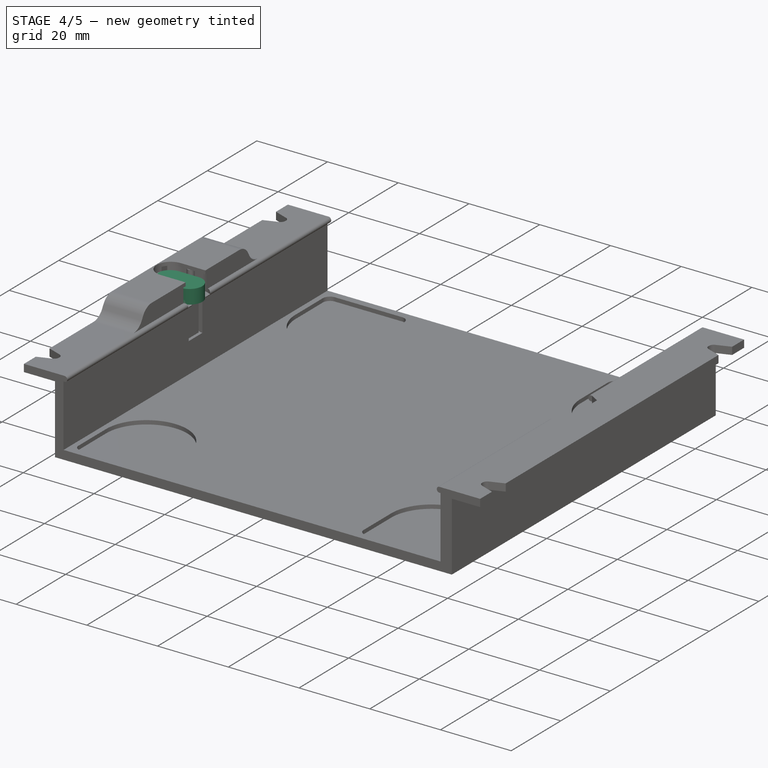
[diagram: stage 4 of 5 — iso view after this stage's code; geometry added in this stage tinted green]
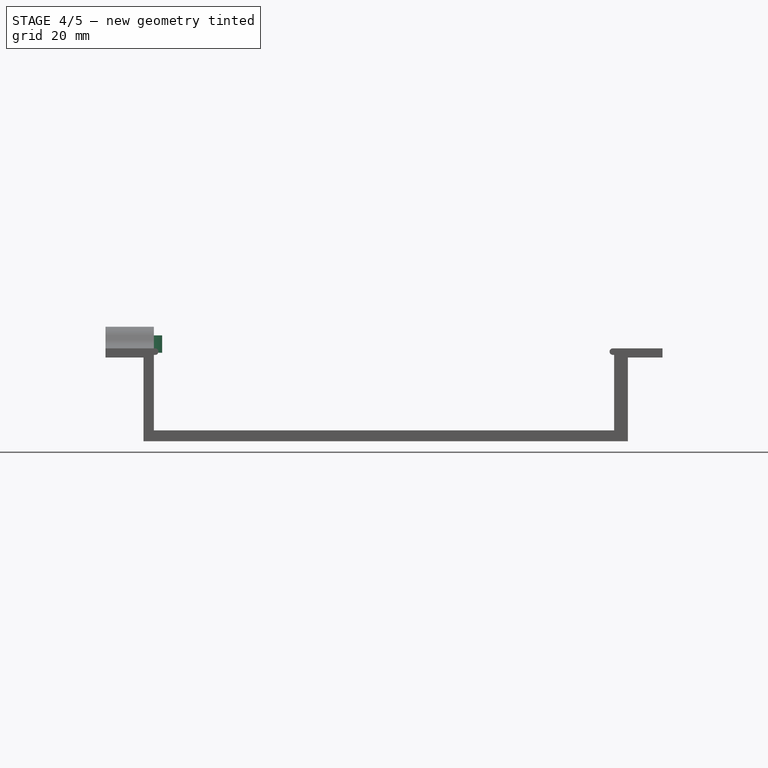
[diagram: stage 4 of 5 — front view after this stage's code; geometry added in this stage tinted green]
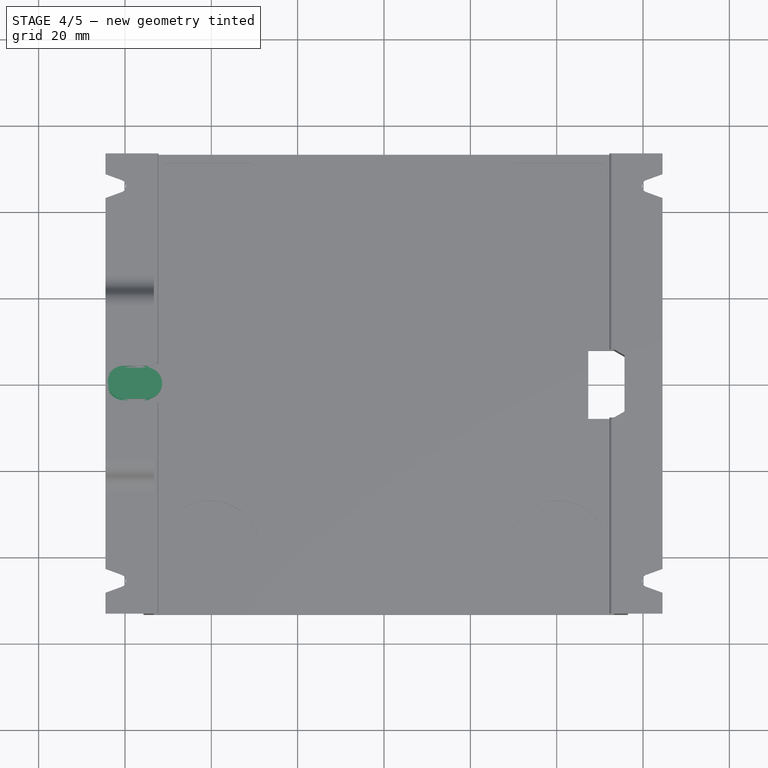
[diagram: stage 4 of 5 — top view after this stage's code; geometry added in this stage tinted green]
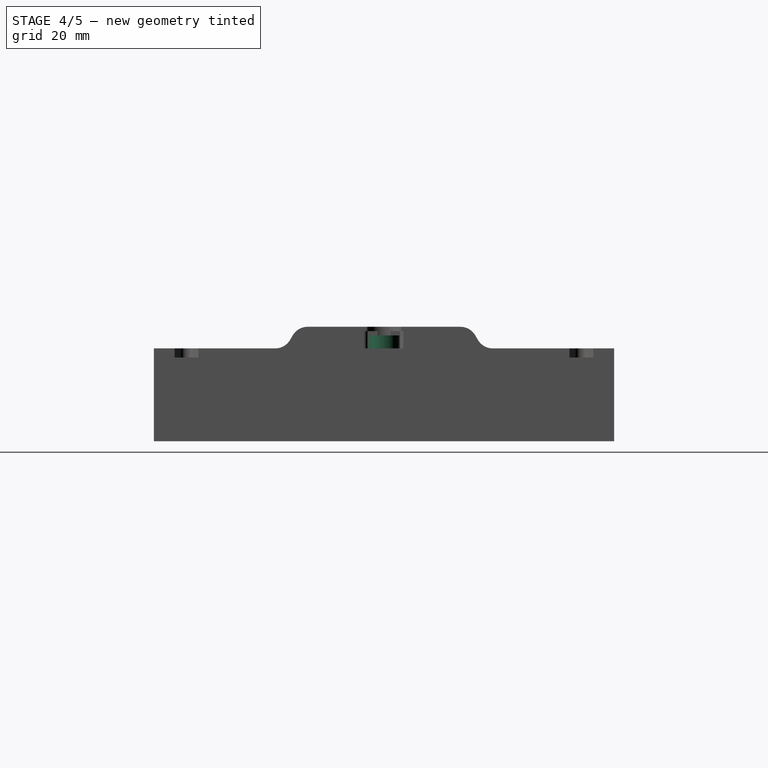
[diagram: stage 4 of 5 — right view after this stage's code; geometry added in this stage tinted green]
FEATURE [PartDesign::Plane] DatumPlane004
  AttachmentOffset = pos=(0,0,7.1) rot=(0,0,1;0rad)
  Length = 152.453
  MapMode = 5
  Placement = pos=(0,0,7.1) rot=(0,0,1;0rad)
  ResizeMode = 0
  Support = -> [XY_Plane001]
  Width = 130.053
FEATURE [Sketcher::SketchObject] Sketch012
  FullyConstrained = true
  MapMode = 5
  Placement = pos=(0,0,7.1) rot=(0,0,1;0rad)
  Support = -> [DatumPlane004]
  sketch-geometry (4):
    g0: ArcOfCircle CenterX=-60.3 CenterY=0 CenterZ=0 NormalX=0 NormalY=0 NormalZ=1 AngleXU=0 Radius=4 StartAngle=1.5708 EndAngle=4.71239
    g1: LineSegment StartX=-60.3 StartY=4 StartZ=0 EndX=-51.3 EndY=4 EndZ=0
    g2: LineSegment StartX=-60.3 StartY=-4 StartZ=0 EndX=-51.3 EndY=-4 EndZ=0
    g3: LineSegment StartX=-51.3 StartY=4 StartZ=0 EndX=-51.3 EndY=-4 EndZ=0
  constraints (11):
    c: PointOnObject(g0,g-1)
    c: Tangent(g0,g1) = 1.5708
    c: Tangent(g0,g2) = -1.5708
    c: DistanceX(g1,g1) = 9
    c: Radius(g0) = 4
    c: Vertical(g3)
    c: Horizontal(g2)
    c: DistanceX(g0,g-1) = 60.3
    c: Horizontal(g1)
    c: Coincident(g3,g1)
    c: Coincident(g3,g2)
FEATURE [PartDesign::Plane] DatumPlane005
  AttachmentOffset = pos=(0,0,1.1) rot=(0,0,1;0rad)
  Length = 102.428
  MapMode = 5
  Placement = pos=(0,0,1.1) rot=(0,0,1;0rad)
  ResizeMode = 0
  Support = -> [XY_Plane003]
  Width = 63.3477
FEATURE [Sketcher::SketchObject] Sketch013
  FullyConstrained = true
  MapMode = 5
  Placement = pos=(0,0,1.1) rot=(0,0,1;0rad)
  Support = -> [DatumPlane005]
  sketch-geometry (4):
    g0: ArcOfCircle CenterX=-60.5 CenterY=0 CenterZ=0 NormalX=0 NormalY=0 NormalZ=1 AngleXU=0 Radius=3.6 StartAngle=1.5708 EndAngle=4.71239
    g1: ArcOfCircle CenterX=-55 CenterY=0 CenterZ=0 NormalX=0 NormalY=0 NormalZ=1 AngleXU=0 Radius=3.6 StartAngle=4.71239 EndAngle=7.85398
    g2: LineSegment StartX=-60.5 StartY=3.6 StartZ=0 EndX=-55 EndY=3.6 EndZ=0
    g3: LineSegment StartX=-60.5 StartY=-3.6 StartZ=0 EndX=-55 EndY=-3.6 EndZ=0
  constraints (12):
    c: PointOnObject(g0,g-1)
    c: PointOnObject(g1,g-1)
    c: Horizontal(g2)
    c: Tangent(g1,g2) = 1.5708
    c: Tangent(g1,g3) = -1.5708
    c: Coincident(g0,g3)
    c: Tangent(g0,g2) = 1.5708
    c: Horizontal(g3)
    c: DistanceX(g2,g2) = 5.5
    c: Radius(g1) = 3.6
    c: DistanceX(g1,g-1) = 55
    c: DistanceX(g0,g-1) = 60.5
FEATURE [PartDesign::Pad] Pad006
  Direction = (0,0,1)
  Length = 4
  Length2 = 10
  Placement = pos=(0,0,1.1) rot=(0,0,1;0rad)
  Profile = -> Sketch013
  ReferenceAxis = -> Sketch013 [N_Axis]
  Type = 0
FEATURE [Sketcher::SketchObject] Sketch015
  FullyConstrained = true
  MapMode = 5
  Placement = pos=(0,0,7.1) rot=(0,0,1;0rad)
  Support = -> [DatumPlane004]
  sketch-geometry (1):
    g0: Circle CenterX=-59 CenterY=0 CenterZ=0 NormalX=0 NormalY=0 NormalZ=1 AngleXU=0 Radius=2.1
  constraints (3):
    c: PointOnObject(g0,g-1)
    c: Diameter(g0) = 4.2
    c: DistanceX(g0,g-1) = 59
FEATURE [Sketcher::SketchObject] Sketch016
  ExternalGeometry = -> [Pad006]
  FullyConstrained = true
  MapMode = 5
  Placement = pos=(0,0,1.1) rot=(0,0,1;0rad)
  Support = -> [DatumPlane005]
  sketch-geometry (5):
    g0: ArcOfCircle CenterX=-60.5 CenterY=0 CenterZ=0 NormalX=0 NormalY=0 NormalZ=1 AngleXU=0 Radius=2.6 StartAngle=1.5708 EndAngle=4.71239
    g1: LineSegment StartX=-55.9 StartY=-2.6 StartZ=0 EndX=-60.5 EndY=-2.6 EndZ=0
    g2: LineSegment StartX=-55.9 StartY=2.6 StartZ=0 EndX=-60.5 EndY=2.6 EndZ=0
    g3: LineSegment StartX=-55.9 StartY=2.6 StartZ=0 EndX=-55.9 EndY=-2.6 EndZ=0
    g4: GeomPoint X=-52.4 Y=0 Z=0
  constraints (13):
    c: PointOnObject(g0,g-1)
    c: Horizontal(g2)
    c: Tangent(g0,g1) = 1.5708
    c: Tangent(g0,g2) = -1.5708
    c: DistanceX(g0,g-1) = 60.5
    c: Radius(g0) = 2.6
    c: Horizontal(g1)
    c: Vertical(g3)
    c: PointOnObject(g4,g-1)
    c: DistanceX(g3,g4) = 3.5
    c: Coincident(g2,g3)
    c: Coincident(g1,g3)
    c: DistanceX(g4,g-1) = 52.4
FEATURE [PartDesign::Pocket] Pocket007
  BaseFeature = -> Pad006
  Direction = (0,0,-1)
  Length = 3.1
  Length2 = 5
  Placement = pos=(0,0,1.1) rot=(0,0,1;0rad)
  Profile = -> Sketch016
  ReferenceAxis = -> Sketch016 [N_Axis]
  Reversed = true
  Type = 0
FEATURE [Sketcher::SketchObject] Sketch018
  FullyConstrained = true
  MapMode = 5
  Placement = pos=(0,0,1.1) rot=(0,0,1;0rad)
  Support = -> [DatumPlane005]
  sketch-geometry (1):
    g0: Circle CenterX=-59 CenterY=0 CenterZ=0 NormalX=0 NormalY=0 NormalZ=1 AngleXU=0 Radius=1.75
  constraints (3):
    c: DistanceX(g0,g-1) = 59
    c: Diameter(g0) = 3.5
    c: PointOnObject(g0,g-1)
FEATURE [Sketcher::SketchObject] Sketch019
  FullyConstrained = true
  MapMode = 5
  Placement = pos=(0,0,1.1) rot=(0,0,1;0rad)
  Support = -> [DatumPlane005]
  sketch-geometry (14):
    g0: ArcOfCircle CenterX=-60.5 CenterY=0 CenterZ=0 NormalX=0 NormalY=0 NormalZ=1 AngleXU=0 Radius=3.6 StartAngle=1.5708 EndAngle=2.60825
    g1: ArcOfCircle CenterX=-55 CenterY=0 CenterZ=0 NormalX=0 NormalY=0 NormalZ=1 AngleXU=0 Radius=3.6 StartAngle=4.71239 EndAngle=5.02097
    g2: LineSegment StartX=-60.5 StartY=3.6 StartZ=0 EndX=-55 EndY=3.6 EndZ=0
    g3: LineSegment StartX=-60.5 StartY=-3.6 StartZ=0 EndX=-55 EndY=-3.6 EndZ=0
    g4: ArcOfCircle CenterX=-56.5 CenterY=0 CenterZ=0 NormalX=0 NormalY=0 NormalZ=1 AngleXU=0 Radius=4.3 StartAngle=4.71239 EndAngle=5.35977
    g5: ArcOfCircle CenterX=-60.5 CenterY=0 CenterZ=0 NormalX=0 NormalY=0 NormalZ=1 AngleXU=0 Radius=4.3 StartAngle=1.5708 EndAngle=2.37594
    g6: LineSegment StartX=-60.5 StartY=4.3 StartZ=0 EndX=-56.5 EndY=4.3 EndZ=0
    g7: LineSegment StartX=-60.5 StartY=-4.3 StartZ=0 EndX=-56.5 EndY=-4.3 EndZ=0
    g8: ArcOfCircle CenterX=-56.5 CenterY=0 CenterZ=0 NormalX=0 NormalY=0 NormalZ=1 AngleXU=0 Radius=4.3 StartAngle=0.923414 EndAngle=1.5708
    g9: ArcOfCircle CenterX=-55 CenterY=0 CenterZ=0 NormalX=0 NormalY=0 NormalZ=1 AngleXU=0 Radius=3.6 StartAngle=1.26222 EndAngle=1.5708
    g10: LineSegment StartX=-63.6 StartY=2.97993 StartZ=0 EndX=-63.6 EndY=1.8303 EndZ=0
    g11: ArcOfCircle CenterX=-60.5 CenterY=0 CenterZ=0 NormalX=0 NormalY=0 NormalZ=1 AngleXU=0 Radius=4.3 StartAngle=3.90725 EndAngle=4.7124
    g12: ArcOfCircle CenterX=-60.5 CenterY=0 CenterZ=0 NormalX=0 NormalY=0 NormalZ=1 AngleXU=0 Radius=3.6 StartAngle=3.67494 EndAngle=4.71239
    g13: LineSegment StartX=-63.6 StartY=-1.8303 StartZ=0 EndX=-63.6 EndY=-2.97993 EndZ=0
  constraints (39):
    c: PointOnObject(g0,g-1)
    c: PointOnObject(g1,g-1)
    c: Horizontal(g2)
    c: Coincident(g9,g2) = 1.5708
    c: Tangent(g0,g2) = 1.5708
    c: Tangent(g1,g3) = -1.5708
    c: DistanceX(g0,g-1) = 60.5
    c: DistanceX(g2,g2) = 5.5
    c: Radius(g0) = 3.6
    c: PointOnObject(g4,g-1)
    c: Coincident(g5,g0)
    c: Horizontal(g7)
    c: Tangent(g5,g6) = 1.5708
    c: Tangent(g4,g7) = -1.5708
    c: Coincident(g11,g7) = -1.5708
    c: Radius(g5) = 4.3
    c: DistanceX(g4,g1) = 1.5
    c: Equal(g4,g8)
    c: Coincident(g4,g8)
    c: Equal(g1,g9)
    c: Coincident(g1,g4)
    c: Coincident(g9,g8)
    c: Coincident(g1,g9)
    c: Equal(g2,g3)
    c: Horizontal(g6)
    c: Vertical(g10)
    c: Equal(g5,g11)
    c: Coincident(g5,g10)
    c: Coincident(g11,g13)
    c: Coincident(g5,g11)
    c: Equal(g0,g12)
    c: Coincident(g0,g12)
    c: Coincident(g10,g0)
    c: Coincident(g13,g12)
    c: Vertical(g0,g12)
    c: DistanceX(g0,g-1) = 63.6
    c: Vertical(g13)
    c: Tangent(g12,g3) = -1.5708
    c: Tangent(g8,g6) = 1.5708
FEATURE [PartDesign::Pad] Pad010  label="Rim"
  BaseFeature = -> Pocket007
  Direction = (0,0,1)
  Length = 1
  Length2 = 10
  Placement = pos=(0,0,1.1) rot=(0,0,1;0rad)
  Profile = -> Sketch019
  ReferenceAxis = -> Sketch019 [N_Axis]
  Refine = true
  Type = 0
FEATURE [PartDesign::Body] Body003  label="Button"
  Group = -> [DatumPlane005,Sketch013,Pad006,Sketch016,Pocket007,Sketch018,Sketch019,Pad010,Pad012,Sketch025,Sketch026,Pocket012,Pocket013,Sketch032,Pocket014,Mirrored002,Fillet]
  Origin = -> Origin003
  Tip = -> Fillet
FEATURE [Sketcher::SketchObject] Sketch033
  ExternalGeometry = -> [Pad013]
  FullyConstrained = true
  MapMode = 5
  Support = -> [XY_Plane002]
  sketch-geometry (3):
    g0: LineSegment StartX=-54 StartY=-2.25 StartZ=0 EndX=-53.5 EndY=0 EndZ=0
    g1: LineSegment StartX=-53.5 StartY=0 StartZ=0 EndX=-53.5 EndY=-2.25 EndZ=0
    g2: LineSegment StartX=-54 StartY=-2.25 StartZ=0 EndX=-53.5 EndY=-2.25 EndZ=0
  constraints (8):
    c: Coincident(g0,g-3)
    c: Coincident(g1,g0)
    c: Vertical(g1)
    c: Coincident(g2,g0)
    c: Horizontal(g2)
    c: Coincident(g1,g2)
    c: DistanceX(g2,g2) = 0.5
    c: PointOnObject(g0,g-1)
FEATURE [PartDesign::Pocket] Pocket015
  BaseFeature = -> Pad013
  Direction = (0,0,-1)
  Length = 9
  Length2 = 5
  Placement = pos=(0,0,0) rot=(1,0,0;1.5708rad)
  Profile = -> Sketch033
  ReferenceAxis = -> Sketch033 [N_Axis]
  Type = 1
FEATURE [PartDesign::Mirrored] Mirrored003
  BaseFeature = -> Pocket015
  MirrorPlane = -> XZ_Plane002
  Originals = -> [Pocket015]
  Placement = pos=(0,0,0) rot=(1,0,0;1.5708rad)
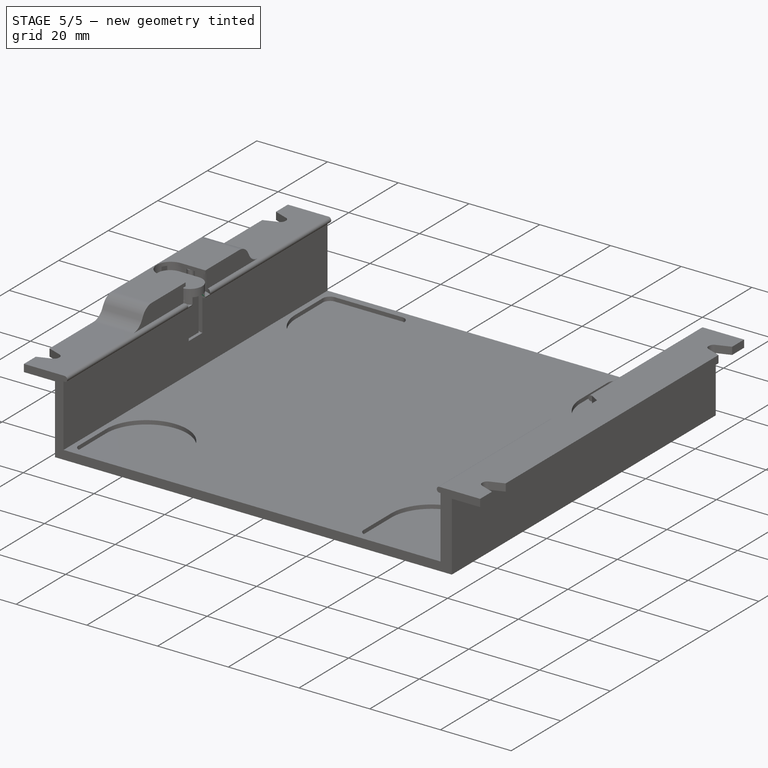
[diagram: stage 5 of 5 — iso view after this stage's code; geometry added in this stage tinted green]
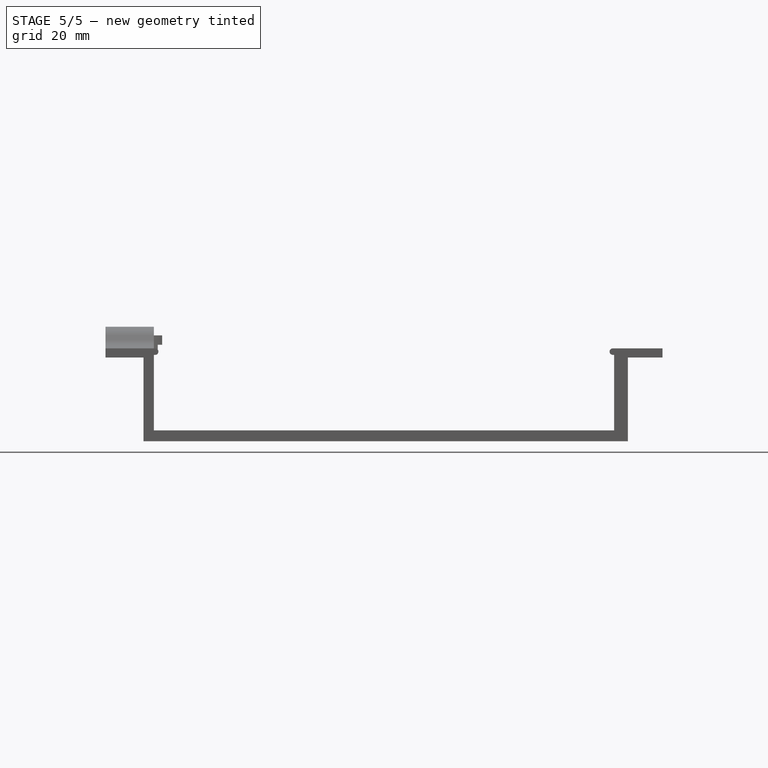
[diagram: stage 5 of 5 — front view after this stage's code; geometry added in this stage tinted green]
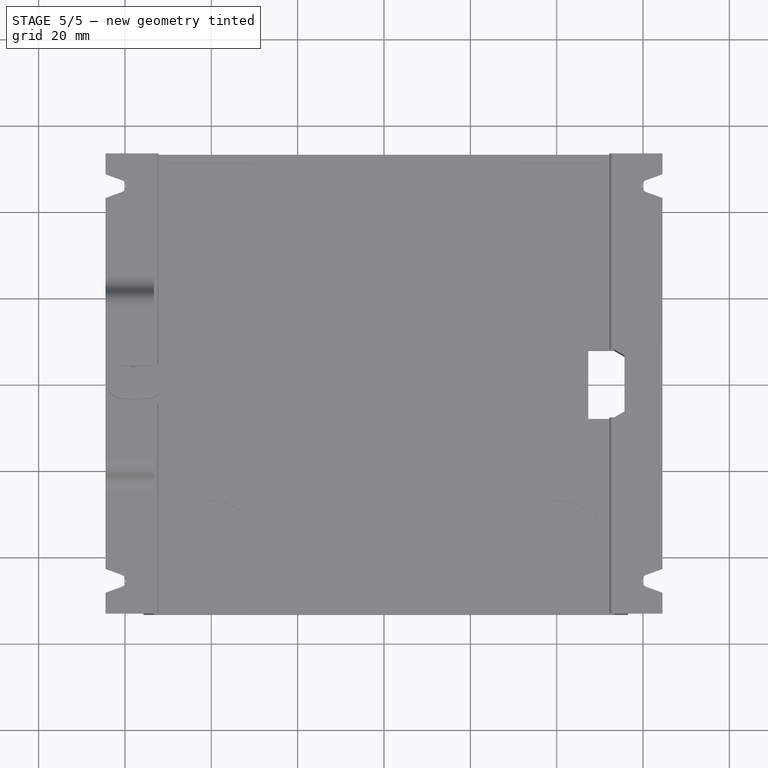
[diagram: stage 5 of 5 — top view after this stage's code; geometry added in this stage tinted green]
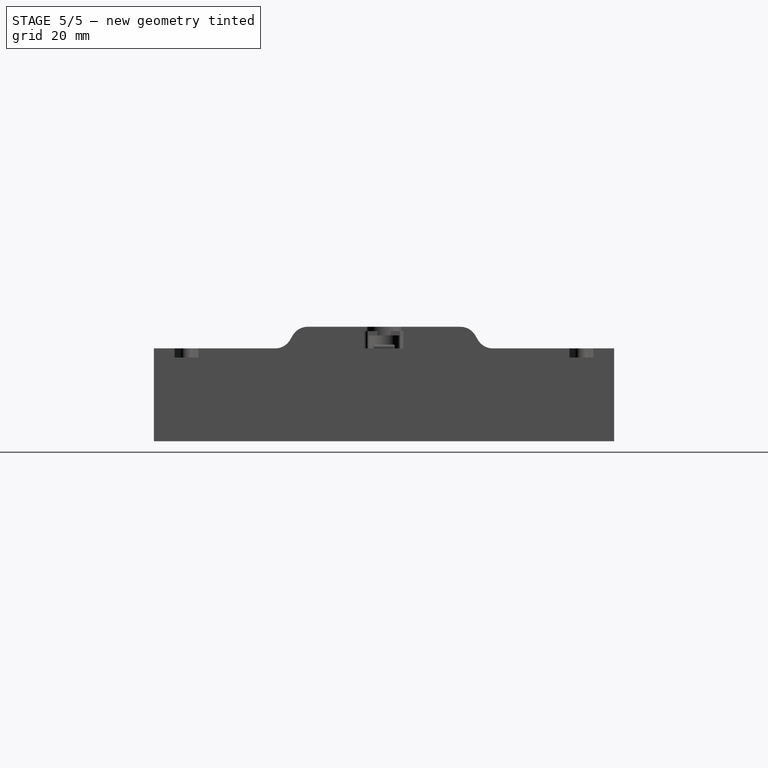
[diagram: stage 5 of 5 — right view after this stage's code; geometry added in this stage tinted green]
FEATURE [Sketcher::SketchObject] Sketch025
  FullyConstrained = true
  MapMode = 5
  Placement = pos=(0,0,0) rot=(1,0,0;1.5708rad)
  Support = -> [XZ_Plane003]
  sketch-geometry (3):
    g0: LineSegment StartX=-54.45 StartY=1.1 StartZ=0 EndX=-54.45 EndY=4.2 EndZ=0
    g1: GeomPoint X=-54.45 Y=2.5 Z=0
    g2: Circle CenterX=-54.45 CenterY=2.5 CenterZ=0 NormalX=0 NormalY=0 NormalZ=1 AngleXU=0 Radius=1
  constraints (9):
    c: Vertical(g0)
    c: DistanceX(g0,g-1) = 54.45
    c: DistanceY(g0,g0) = 3.1
    c: DistanceY(g-1,g0) = 4.2
    c: PointOnObject(g1,g0)
    c: DistanceY(g1,g0) = 1.7
    c: Coincident(g2,g1)
    c: Diameter(g2) = 2
    c: DistanceY(g-1,g2) = 2.5
FEATURE [PartDesign::Pad] Pad012  label="Spring holder"
  BaseFeature = -> Pad010
  Direction = (0,0,1)
  Length = 4
  Length2 = 10
  Placement = pos=(0,0,1.1) rot=(0,0,1;0rad)
  Profile = -> Sketch018
  ReferenceAxis = -> Sketch018 [N_Axis]
  Refine = true
  Type = 0
FEATURE [PartDesign::Pocket] Pocket012
  BaseFeature = -> Pad012
  Direction = (0,1,2e-16)
  Length = 6
  Length2 = 5
  Midplane = true
  Placement = pos=(0,0,1.1) rot=(0,0,1;0rad)
  Profile = -> Sketch025
  ReferenceAxis = -> Sketch025 [N_Axis]
  Type = 0
FEATURE [PartDesign::Pocket] Pocket013
  BaseFeature = -> Pocket012
  Direction = (0,0,-1)
  Length = 1.85
  Length2 = 5
  Placement = pos=(0,0,1.1) rot=(0,0,1;0rad)
  Profile = -> Sketch026
  ReferenceAxis = -> Sketch026 [N_Axis]
  Reversed = true
  Type = 0
FEATURE [Sketcher::SketchObject] Sketch032
  FullyConstrained = true
  MapMode = 5
  Placement = pos=(0,0,1.1) rot=(0,0,1;0rad)
  Support = -> [DatumPlane005]
  sketch-geometry (1):
    g0: Circle CenterX=-58 CenterY=-4.7 CenterZ=0 NormalX=0 NormalY=0 NormalZ=1 AngleXU=0 Radius=1.1
  constraints (3):
    c: Diameter(g0) = 2.2
    c: DistanceY(g0,g-1) = 4.7
    c: DistanceX(g0,g-1) = 58
FEATURE [PartDesign::Pocket] Pocket014
  BaseFeature = -> Pocket013
  Direction = (0,0,-1)
  Length = 5
  Length2 = 5
  Placement = pos=(0,0,1.1) rot=(0,0,1;0rad)
  Profile = -> Sketch032
  ReferenceAxis = -> Sketch032 [N_Axis]
  Reversed = true
  Type = 0
FEATURE [PartDesign::Mirrored] Mirrored002
  BaseFeature = -> Pocket014
  MirrorPlane = -> XZ_Plane003
  Originals = -> [Pocket014]
  Placement = pos=(0,0,1.1) rot=(0,0,1;0rad)
FEATURE [PartDesign::Fillet] Fillet
  Base = -> Mirrored002 [Edge54,Edge56,Edge50,Edge52]
  BaseFeature = -> Mirrored002
  Placement = pos=(0,0,1.1) rot=(0,0,1;0rad)
  Radius = 0.5
  SupportTransform = false
  UseAllEdges = false
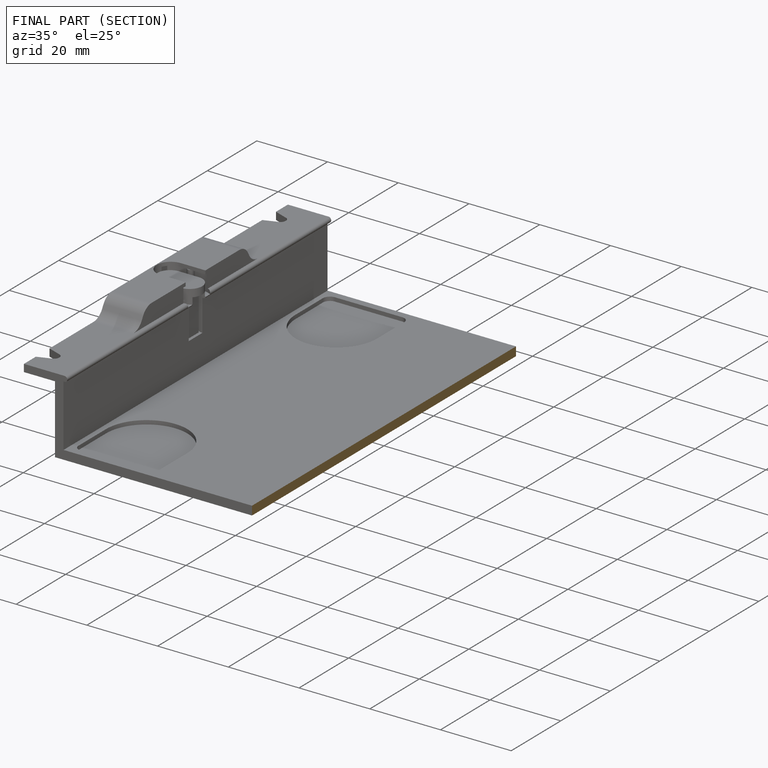
[diagram: finished part — half-section view (interior)]
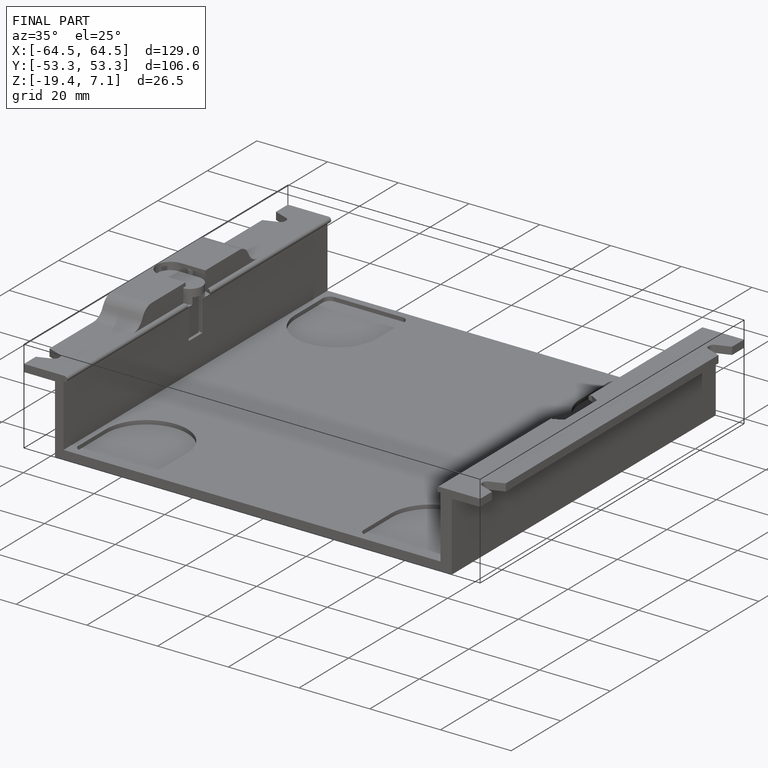
[diagram: finished part — iso view with bounding-box wireframe]
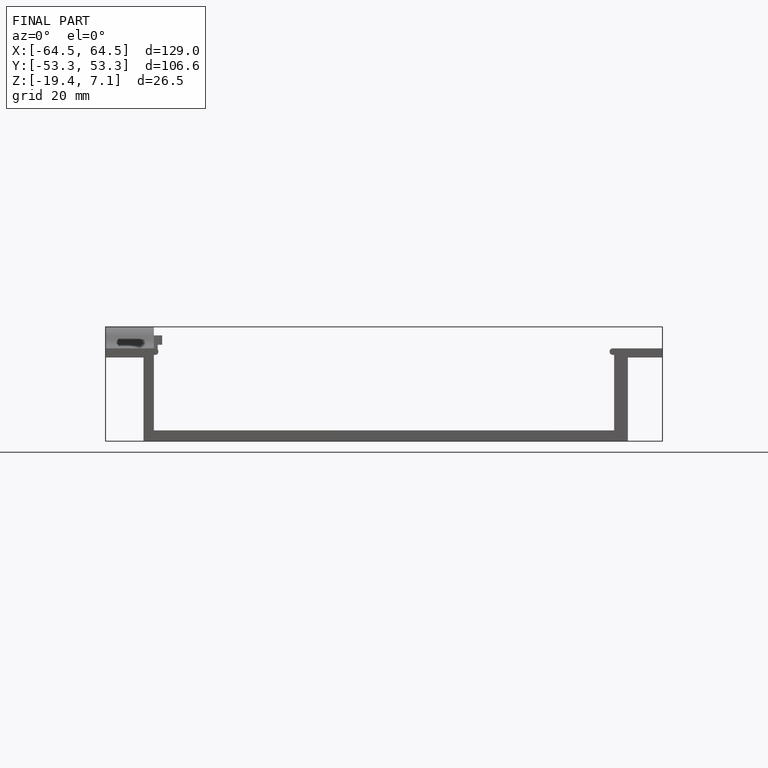
[diagram: finished part — front view with bounding-box wireframe]
